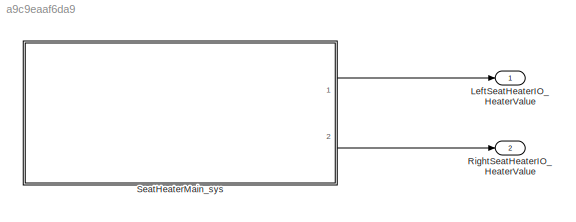
MODEL slx_a9c9eaaf6da9
KIND model
CONFIG AbsTol = auto
CONFIG FixedStep = auto
CONFIG MaxStep = auto
CONFIG MinStep = auto
CONFIG RelTol = 1e-3
CONFIG SampleTimeConstraint = Unconstrained
CONFIG Solver = FixedStepDiscrete
CONFIG SolverMode = Auto
CONFIG SolverName = FixedStepDiscrete
CONFIG StartTime = 0.0
CONFIG StopTime = 10.0
BLOCK [Outport] LeftSeatHeaterIO_HeaterValue
  IconDisplay = Port number
  OutDataTypeStr = Int32
  PortDimensions = 1
  SamplingMode = Sample based
  SignalType = real
BLOCK [Outport] RightSeatHeaterIO_HeaterValue
  IconDisplay = Port number
  OutDataTypeStr = Int32
  Port = 2
  PortDimensions = 1
  SamplingMode = Sample based
  SignalType = real
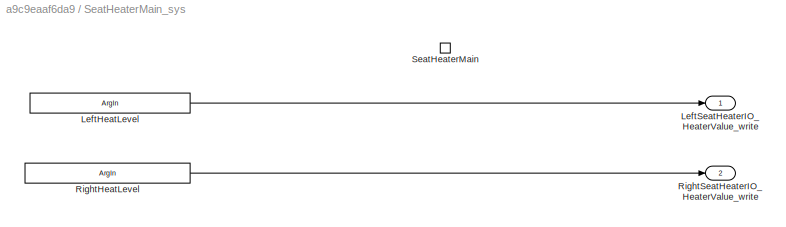
BLOCK [SubSystem] SeatHeaterMain_sys
  Ports = [0, 2, 0, 1]
  RequestExecContextInheritance = off
BLOCK [ArgIn] SeatHeaterMain_sys/LeftHeatLevel
  ArgumentName = LeftHeatLevel
  OutDataTypeStr = Int32
BLOCK [Outport] SeatHeaterMain_sys/LeftSeatHeaterIO_HeaterValue_write
  IconDisplay = Port number
BLOCK [ArgIn] SeatHeaterMain_sys/RightHeatLevel
  ArgumentName = RightHeatLevel
  OutDataTypeStr = Int32
  Port = 2
BLOCK [Outport] SeatHeaterMain_sys/RightSeatHeaterIO_HeaterValue_write
  IconDisplay = Port number
  Port = 2
BLOCK [TriggerPort] SeatHeaterMain_sys/SeatHeaterMain
  FunctionName = SeatHeaterMain
  IsSimulinkFunction = on
  Ports = []
  StatesWhenEnabling = held
  TriggerType = function-call
LINE SeatHeaterMain_sys/LeftHeatLevel:1 -> SeatHeaterMain_sys/LeftSeatHeaterIO_HeaterValue_write:1
LINE SeatHeaterMain_sys/RightHeatLevel:1 -> SeatHeaterMain_sys/RightSeatHeaterIO_HeaterValue_write:1
LINE SeatHeaterMain_sys:1 -> LeftSeatHeaterIO_HeaterValue:1
LINE SeatHeaterMain_sys:2 -> RightSeatHeaterIO_HeaterValue:1
